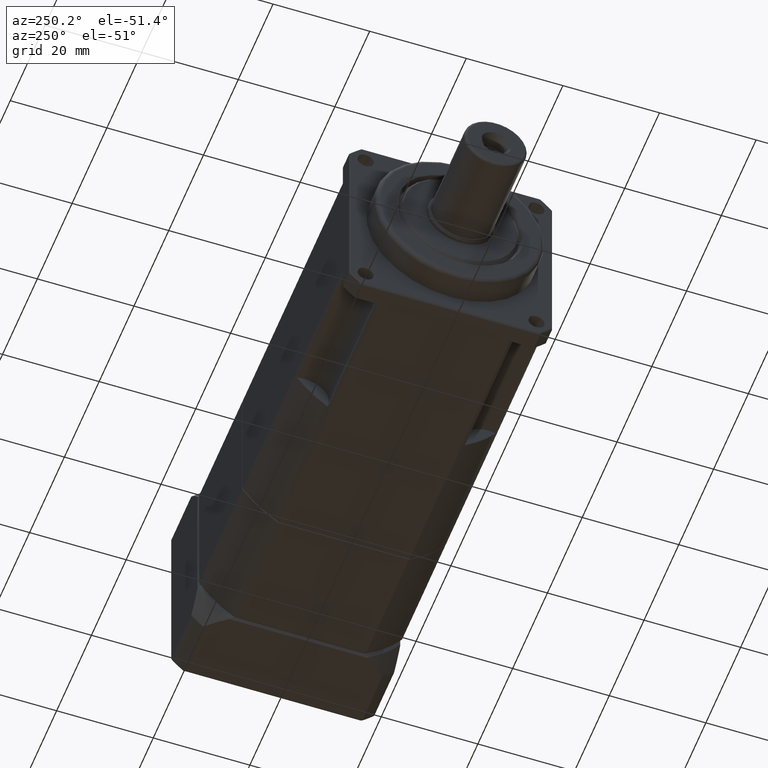
[diagram: clean part render]
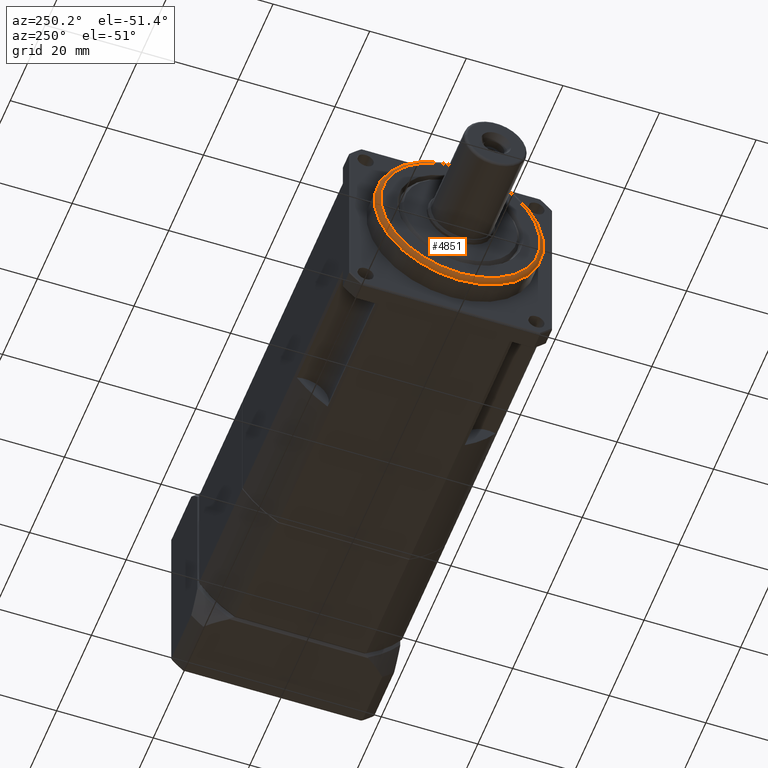
[diagram: same view with one face highlighted and labeled with its STEP entity id]
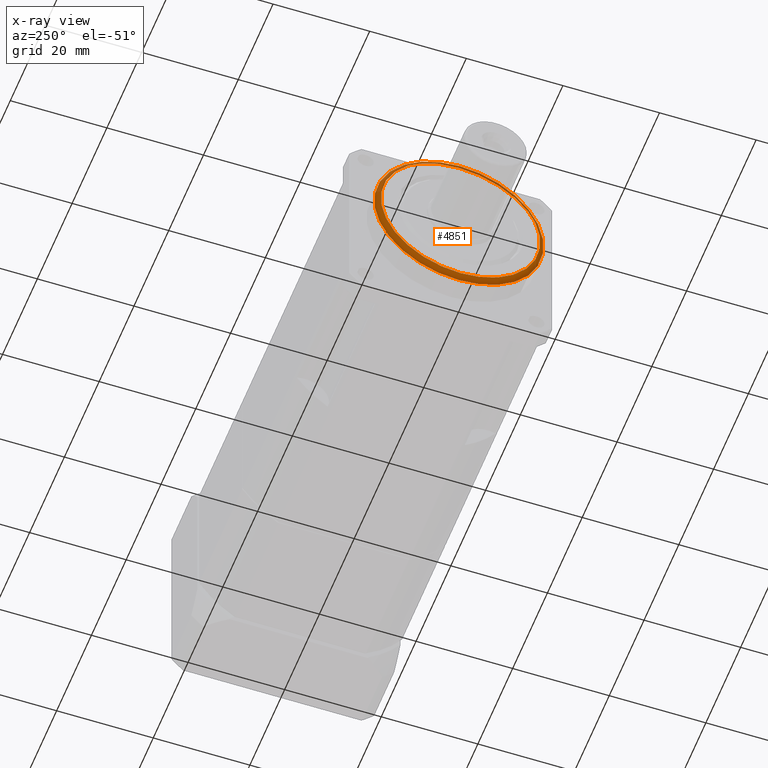
[diagram: x-ray of the same camera — body ghosted, the highlighted face saturated]
A machine part, auxiliary view. The second image highlights one B-rep face of the part: STEP entity #4851.
The next image is the same camera in x-ray: the body ghosted, the highlighted face saturated — about 7% of this face is hidden behind the body in this view.
In plain terms, the highlighted toroidal blend (fillet) surface has major radius 16.5 mm and minor (blend) radius 1 mm.
Its self-contained STEP definition (entity closure, byte-faithful):
#681=TOROIDAL_SURFACE('',#5349,16.5,1.);
#932=FACE_BOUND('',#1569,.T.);
#1157=FACE_OUTER_BOUND('',#1568,.T.);
#1568=EDGE_LOOP('',(#3702));
#1569=EDGE_LOOP('',(#3703));
#1938=CIRCLE('',#5348,16.5);
#1939=CIRCLE('',#5350,17.5);
#2278=VERTEX_POINT('',#7952);
#2279=VERTEX_POINT('',#7955);
#2797=EDGE_CURVE('',#2278,#2278,#1938,.T.);
#2798=EDGE_CURVE('',#2279,#2279,#1939,.T.);
#3702=ORIENTED_EDGE('',*,*,#2798,.T.);
#3703=ORIENTED_EDGE('',*,*,#2797,.T.);
#4851=ADVANCED_FACE('',(#1157,#932),#681,.T.);
#5348=AXIS2_PLACEMENT_3D('',#7953,#6385,#6386);
#5349=AXIS2_PLACEMENT_3D('',#7954,#6387,#6388);
#5350=AXIS2_PLACEMENT_3D('',#7956,#6389,#6390);
#6385=DIRECTION('center_axis',(1.,-4.44089209850051E-16,-1.50008167835232E-15));
#6386=DIRECTION('ref_axis',(-1.50008167835233E-15,-9.43516098583778E-15,
-1.));
#6387=DIRECTION('center_axis',(-1.,4.44089209850051E-16,1.50008167835232E-15));
#6388=DIRECTION('ref_axis',(1.21807326130303E-15,9.33856166998989E-15,1.));
#6389=DIRECTION('center_axis',(-1.,4.44089209850051E-16,1.50008167835232E-15));
#6390=DIRECTION('ref_axis',(-1.50008167835233E-15,-9.43516098583778E-15,
-1.));
#7952=CARTESIAN_POINT('',(-44.2840049856136,-38.8674851319123,-10.8477552941332));
#7953=CARTESIAN_POINT('Origin',(-44.2840049856136,-38.8674851319124,-27.3477552941332));
#7954=CARTESIAN_POINT('Origin',(-43.2840049856136,-38.8674851319124,-27.3477552941332));
#7955=CARTESIAN_POINT('',(-43.2840049856136,-38.8674851319123,-9.84775529413318));
#7956=CARTESIAN_POINT('Origin',(-43.2840049856136,-38.8674851319124,-27.3477552941332));